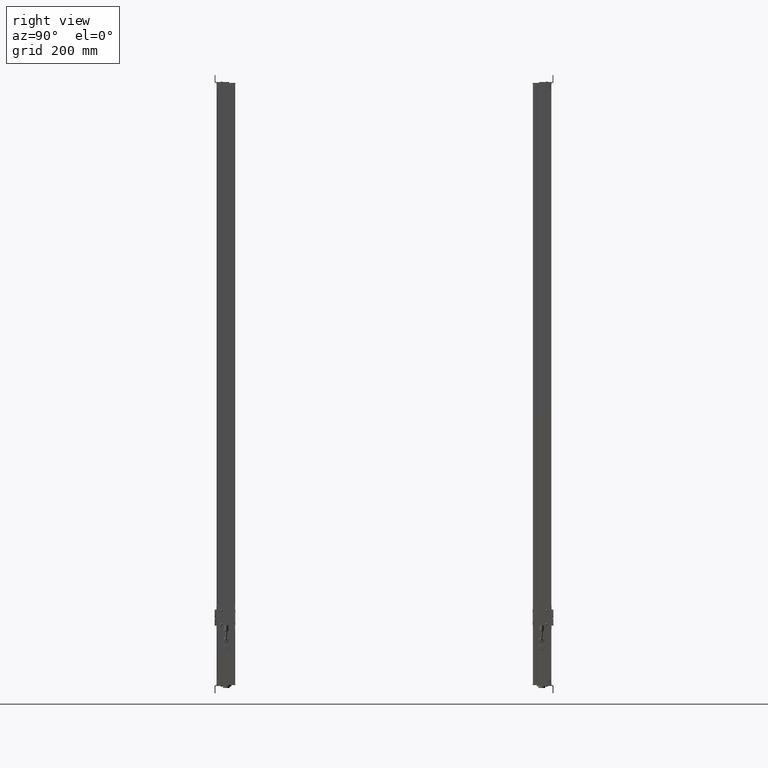
[diagram: clean part render]
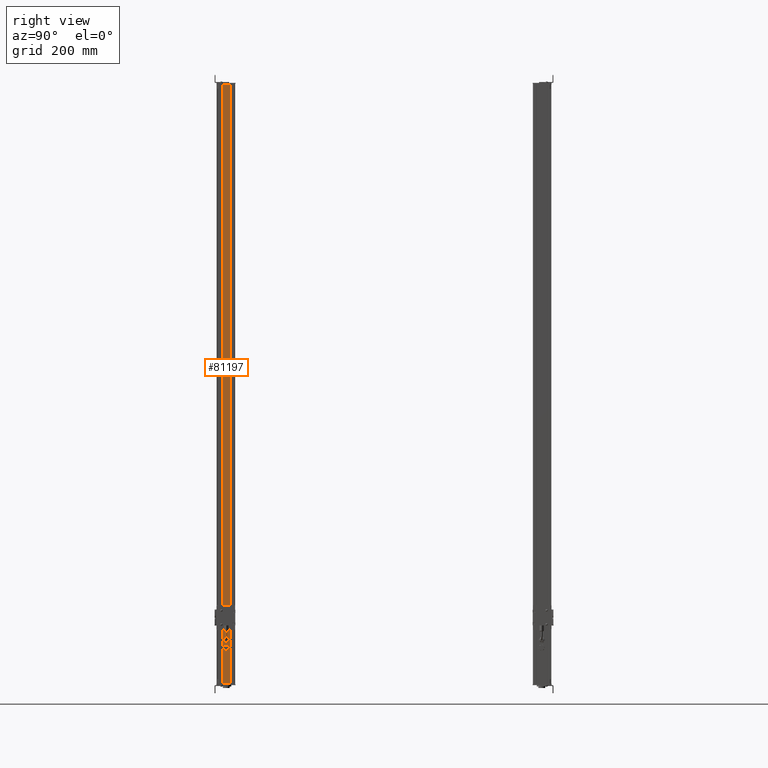
[diagram: same view with one face highlighted and labeled with its STEP entity id]
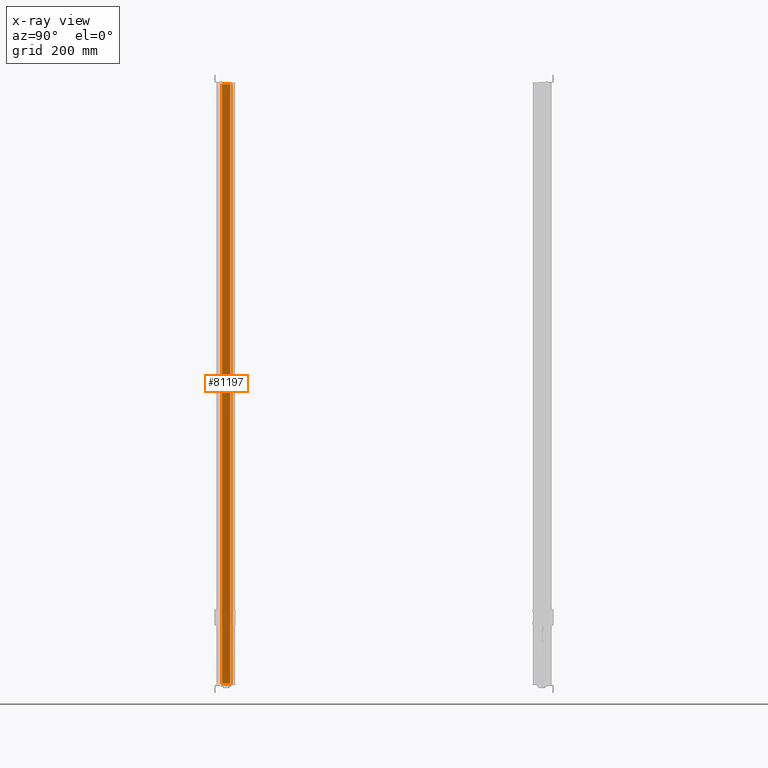
[diagram: x-ray of the same camera — body ghosted, the highlighted face saturated]
A machine part, right view. The second image highlights one B-rep face of the part: STEP entity #81197.
The next image is the same camera in x-ray: the body ghosted, the highlighted face saturated — about 3% of this face is hidden behind the body in this view.
In plain terms, the highlighted planar face has unit normal (1, 0, 0).
Its self-contained STEP definition (entity closure, byte-faithful):
#80458=CARTESIAN_POINT('Axis2P3D Location',(666.195883662,171.710394004,0.)) ;
#81150=CARTESIAN_POINT('Vertex',(666.195883661,138.767790275,0.)) ;
#81153=CARTESIAN_POINT('Line Origine',(666.195883661,138.767790275,1006.)) ;
#81157=CARTESIAN_POINT('Vertex',(666.195883661,138.767790275,2012.)) ;
#81172=CARTESIAN_POINT('Line Origine',(666.195883662,152.38909214,0.)) ;
#81176=CARTESIAN_POINT('Vertex',(666.195883662,166.010394005,0.)) ;
#81179=CARTESIAN_POINT('Line Origine',(666.195883662,166.010394005,1006.)) ;
#81183=CARTESIAN_POINT('Vertex',(666.195883662,166.010394005,2012.)) ;
#81186=CARTESIAN_POINT('Line Origine',(666.195883662,152.38909214,2012.)) ;
#80459=DIRECTION('Axis2P3D Direction',(1.,0.,0.)) ;
#80460=DIRECTION('Axis2P3D XDirection',(0.,1.,0.)) ;
#81154=DIRECTION('Vector Direction',(0.,0.,1.)) ;
#81173=DIRECTION('Vector Direction',(0.,1.,0.)) ;
#81180=DIRECTION('Vector Direction',(0.,0.,1.)) ;
#81187=DIRECTION('Vector Direction',(0.,1.,0.)) ;
#80461=AXIS2_PLACEMENT_3D('Plane Axis2P3D',#80458,#80459,#80460) ;
#81192=ORIENTED_EDGE('',*,*,#81159,.F.) ;
#81193=ORIENTED_EDGE('',*,*,#81178,.T.) ;
#81194=ORIENTED_EDGE('',*,*,#81185,.T.) ;
#81195=ORIENTED_EDGE('',*,*,#81190,.F.) ;
#81155=VECTOR('Line Direction',#81154,1.) ;
#81174=VECTOR('Line Direction',#81173,1.) ;
#81181=VECTOR('Line Direction',#81180,1.) ;
#81188=VECTOR('Line Direction',#81187,1.) ;
#81197=ADVANCED_FACE('Body.2',(#81196),#80462,.T.) ;
#81159=EDGE_CURVE('',#81151,#81158,#81156,.T.) ;
#81178=EDGE_CURVE('',#81151,#81177,#81175,.T.) ;
#81185=EDGE_CURVE('',#81177,#81184,#81182,.T.) ;
#81190=EDGE_CURVE('',#81158,#81184,#81189,.T.) ;
#81191=EDGE_LOOP('',(#81192,#81193,#81194,#81195)) ;
#81196=FACE_OUTER_BOUND('',#81191,.T.) ;
#81156=LINE('Line',#81153,#81155) ;
#81175=LINE('Line',#81172,#81174) ;
#81182=LINE('Line',#81179,#81181) ;
#81189=LINE('Line',#81186,#81188) ;
#80462=PLANE('Plane',#80461) ;
#81151=VERTEX_POINT('',#81150) ;
#81158=VERTEX_POINT('',#81157) ;
#81177=VERTEX_POINT('',#81176) ;
#81184=VERTEX_POINT('',#81183) ;